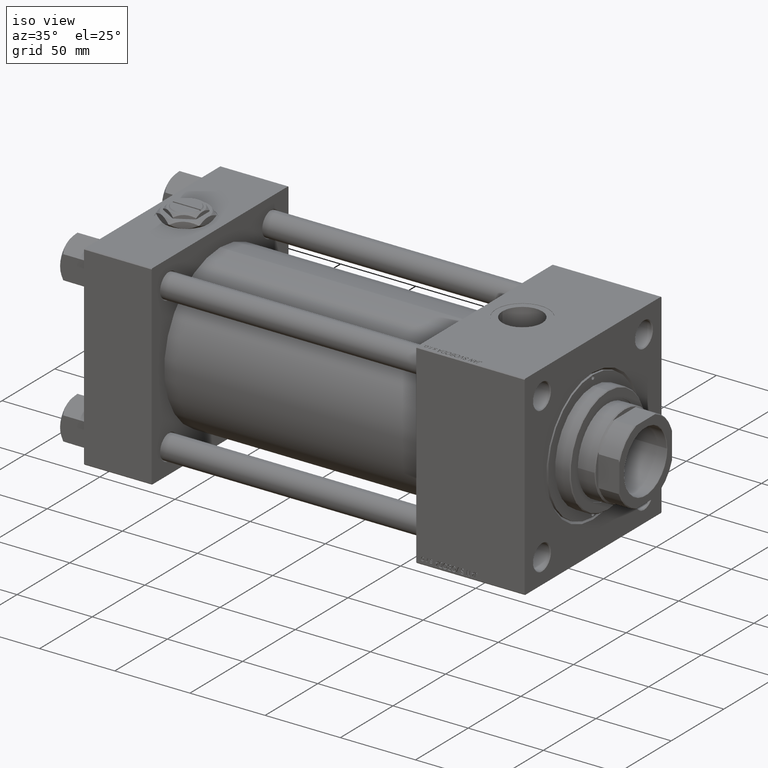
[diagram: clean part render]
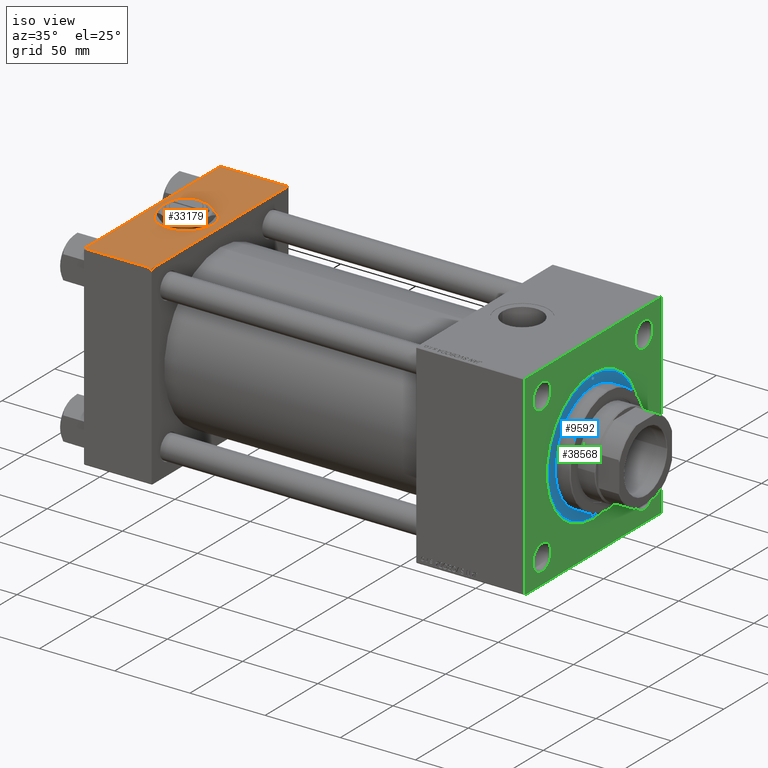
[diagram: same view with three faces highlighted in distinct colors, each labeled with its STEP entity id]
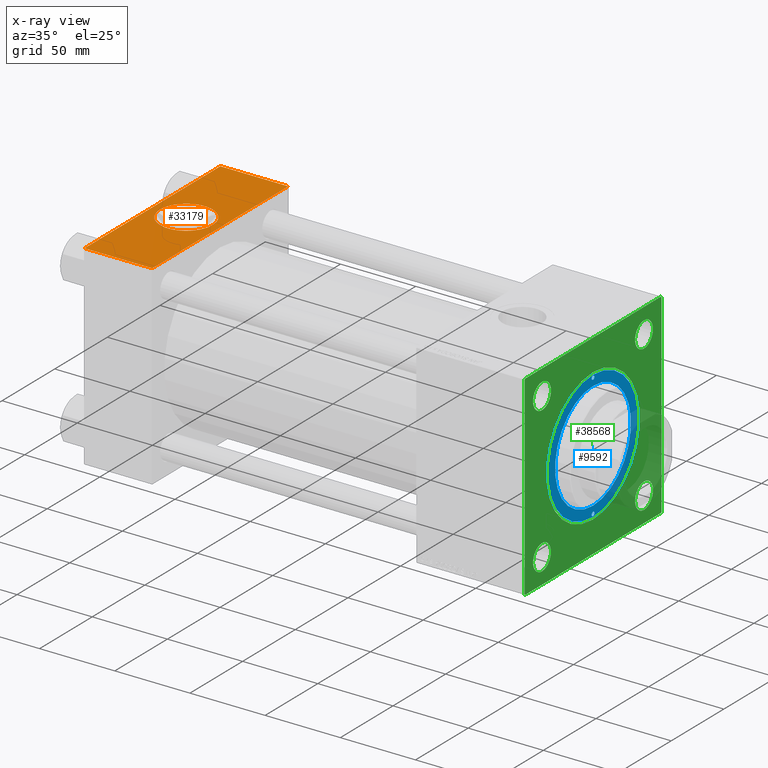
[diagram: x-ray of the same camera — body ghosted, the three highlighted faces saturated]
A machine part, iso view with three faces highlighted in distinct colors.
The next image is the same camera in x-ray (body ghosted, the three faces saturated) — at least one of them is partly hidden behind the body in this view.
Their STEP definitions:

[orange] entity #33179 — the highlighted planar face has unit normal (0, 0, -1).
#2088 = ORIENTED_EDGE ( 'NONE', *, *, #9743, .T. ) ;
#2925 = FACE_BOUND ( 'NONE', #11461, .T. ) ;
#3879 = CARTESIAN_POINT ( 'NONE',  ( 4.999999999999997335, -6.530485481376167224E-15, 65.00000000000000000 ) ) ;
#6638 = ORIENTED_EDGE ( 'NONE', *, *, #44362, .T. ) ;
#7483 = PLANE ( 'NONE',  #45218 ) ;
#7799 = ORIENTED_EDGE ( 'NONE', *, *, #14990, .T. ) ;
#9743 = EDGE_CURVE ( 'NONE', #51570, #29292, #17044, .T. ) ;
#10136 = VECTOR ( 'NONE', #17566, 1000.000000000000000 ) ;
#10949 = DIRECTION ( 'NONE',  ( 0.000000000000000000, 1.000000000000000000, 1.067522139062650548E-16 ) ) ;
#11117 = ORIENTED_EDGE ( 'NONE', *, *, #25686, .F. ) ;
#11461 = EDGE_LOOP ( 'NONE', ( #20866, #11117 ) ) ;
#11503 = EDGE_CURVE ( 'NONE', #34781, #50611, #31800, .T. ) ;
#11755 = CARTESIAN_POINT ( 'NONE',  ( 0.000000000000000000, -64.49999999999997158, 65.00000000000000000 ) ) ;
#14990 = EDGE_CURVE ( 'NONE', #29292, #39689, #41036, .T. ) ;
#16913 = EDGE_LOOP ( 'NONE', ( #7799, #6638, #52885, #2088 ) ) ;
#17044 = LINE ( 'NONE', #17306, #10136 ) ;
#17049 = VERTEX_POINT ( 'NONE', #19312 ) ;
#17306 = CARTESIAN_POINT ( 'NONE',  ( 0.000000000000000000, 64.49999999999997158, 65.00000000000001421 ) ) ;
#17566 = DIRECTION ( 'NONE',  ( -1.000000000000000000, 0.000000000000000000, 0.000000000000000000 ) ) ;
#17593 = CARTESIAN_POINT ( 'NONE',  ( 0.000000000000000000, 64.49999999999997158, 65.00000000000001421 ) ) ;
#17673 = EDGE_CURVE ( 'NONE', #51570, #17049, #45587, .T. ) ;
#19312 = CARTESIAN_POINT ( 'NONE',  ( 45.00000000000000000, -64.49999999999997158, 65.00000000000000000 ) ) ;
#19770 = LINE ( 'NONE', #51912, #30606 ) ;
#20866 = ORIENTED_EDGE ( 'NONE', *, *, #11503, .F. ) ;
#21020 = CARTESIAN_POINT ( 'NONE',  ( 22.50000000000000000, -8.673617379884035472E-15, 65.00000000000000000 ) ) ;
#21478 = DIRECTION ( 'NONE',  ( 0.000000000000000000, -1.000000000000000000, -1.067522139062650425E-16 ) ) ;
#22737 = CIRCLE ( 'NONE', #31273, 17.50000000000000000 ) ;
#24529 = DIRECTION ( 'NONE',  ( 0.000000000000000000, 0.000000000000000000, 1.000000000000000000 ) ) ;
#25686 = EDGE_CURVE ( 'NONE', #50611, #34781, #22737, .T. ) ;
#25844 = CARTESIAN_POINT ( 'NONE',  ( 40.00000000000000000, -8.673617379884035472E-15, 65.00000000000000000 ) ) ;
#29292 = VERTEX_POINT ( 'NONE', #17593 ) ;
#30606 = VECTOR ( 'NONE', #51650, 1000.000000000000000 ) ;
#31047 = CARTESIAN_POINT ( 'NONE',  ( 45.00000000000000000, 65.00000000000000000, 65.00000000000001421 ) ) ;
#31273 = AXIS2_PLACEMENT_3D ( 'NONE', #21020, #40854, #37110 ) ;
#31800 = CIRCLE ( 'NONE', #48046, 17.50000000000000000 ) ;
#32319 = DIRECTION ( 'NONE',  ( 1.000000000000000000, 0.000000000000000000, 0.000000000000000000 ) ) ;
#32755 = VECTOR ( 'NONE', #21478, 1000.000000000000000 ) ;
#33179 = ADVANCED_FACE ( 'NONE', ( #2925, #51947 ), #7483, .F. ) ;
#34781 = VERTEX_POINT ( 'NONE', #25844 ) ;
#36341 = CARTESIAN_POINT ( 'NONE',  ( 22.50000000000000000, -8.673617379884035472E-15, 65.00000000000000000 ) ) ;
#37110 = DIRECTION ( 'NONE',  ( 1.000000000000000000, 0.000000000000000000, 0.000000000000000000 ) ) ;
#37931 = VECTOR ( 'NONE', #46380, 1000.000000000000000 ) ;
#39572 = CARTESIAN_POINT ( 'NONE',  ( 45.00000000000000000, 64.49999999999997158, 65.00000000000001421 ) ) ;
#39689 = VERTEX_POINT ( 'NONE', #11755 ) ;
#40854 = DIRECTION ( 'NONE',  ( 0.000000000000000000, 0.000000000000000000, 1.000000000000000000 ) ) ;
#41036 = LINE ( 'NONE', #41818, #32755 ) ;
#41818 = CARTESIAN_POINT ( 'NONE',  ( 0.000000000000000000, 65.00000000000000000, 65.00000000000001421 ) ) ;
#43621 = DIRECTION ( 'NONE',  ( 0.000000000000000000, 1.067522139062650548E-16, -1.000000000000000000 ) ) ;
#44362 = EDGE_CURVE ( 'NONE', #39689, #17049, #19770, .T. ) ;
#45218 = AXIS2_PLACEMENT_3D ( 'NONE', #31047, #43621, #10949 ) ;
#45587 = LINE ( 'NONE', #50404, #37931 ) ;
#46380 = DIRECTION ( 'NONE',  ( 0.000000000000000000, -1.000000000000000000, -1.067522139062650425E-16 ) ) ;
#48046 = AXIS2_PLACEMENT_3D ( 'NONE', #36341, #24529, #32319 ) ;
#50404 = CARTESIAN_POINT ( 'NONE',  ( 45.00000000000000000, 65.00000000000000000, 65.00000000000001421 ) ) ;
#50611 = VERTEX_POINT ( 'NONE', #3879 ) ;
#51570 = VERTEX_POINT ( 'NONE', #39572 ) ;
#51650 = DIRECTION ( 'NONE',  ( 1.000000000000000000, 0.000000000000000000, 0.000000000000000000 ) ) ;
#51912 = CARTESIAN_POINT ( 'NONE',  ( 45.00000000000000000, -64.49999999999997158, 65.00000000000000000 ) ) ;
#51947 = FACE_OUTER_BOUND ( 'NONE', #16913, .T. ) ;
#52885 = ORIENTED_EDGE ( 'NONE', *, *, #17673, .F. ) ;

[blue] entity #9592 — the highlighted planar face has unit normal (1, 0, 0).
#4 = AXIS2_PLACEMENT_3D ( 'NONE', #7756, #32388, #49503 ) ;
#322 = VERTEX_POINT ( 'NONE', #25390 ) ;
#479 = DIRECTION ( 'NONE',  ( 0.000000000000000000, 0.000000000000000000, 1.000000000000000000 ) ) ;
#987 = EDGE_LOOP ( 'NONE', ( #48720, #21626 ) ) ;
#1166 = EDGE_CURVE ( 'NONE', #51088, #32192, #23688, .T. ) ;
#1721 = CIRCLE ( 'NONE', #29935, 1.249999999999994227 ) ;
#2031 = ORIENTED_EDGE ( 'NONE', *, *, #1166, .F. ) ;
#2086 = EDGE_LOOP ( 'NONE', ( #2031, #21890 ) ) ;
#3426 = DIRECTION ( 'NONE',  ( 0.000000000000000000, 0.000000000000000000, 1.000000000000000000 ) ) ;
#3947 = DIRECTION ( 'NONE',  ( 1.000000000000000000, 0.000000000000000000, -0.000000000000000000 ) ) ;
#4407 = EDGE_LOOP ( 'NONE', ( #45508, #33569 ) ) ;
#6277 = DIRECTION ( 'NONE',  ( 0.000000000000000000, 0.000000000000000000, 1.000000000000000000 ) ) ;
#7397 = CIRCLE ( 'NONE', #35611, 36.00000000000000000 ) ;
#7448 = AXIS2_PLACEMENT_3D ( 'NONE', #40433, #48474, #48211 ) ;
#7734 = EDGE_CURVE ( 'NONE', #24610, #35501, #1721, .T. ) ;
#7756 = CARTESIAN_POINT ( 'NONE',  ( 0.000000000000000000, 0.000000000000000000, 28.69999999999999929 ) ) ;
#7965 = CARTESIAN_POINT ( 'NONE',  ( 0.000000000000000000, 0.000000000000000000, 28.69999999999999929 ) ) ;
#9592 = ADVANCED_FACE ( 'NONE', ( #10109, #22440, #18416, #38767 ), #15998, .T. ) ;
#9633 = AXIS2_PLACEMENT_3D ( 'NONE', #46779, #50808, #51349 ) ;
#10109 = FACE_BOUND ( 'NONE', #2086, .T. ) ;
#10111 = VERTEX_POINT ( 'NONE', #26522 ) ;
#11295 = EDGE_CURVE ( 'NONE', #322, #48941, #21611, .T. ) ;
#11708 = CIRCLE ( 'NONE', #21931, 42.75000000000000000 ) ;
#12804 = CIRCLE ( 'NONE', #4, 42.75000000000000000 ) ;
#13932 = CARTESIAN_POINT ( 'NONE',  ( 39.75000000000000000, 1.530808498934193050E-16, 28.69999999999999929 ) ) ;
#15825 = DIRECTION ( 'NONE',  ( 0.000000000000000000, 0.000000000000000000, 1.000000000000000000 ) ) ;
#15998 = PLANE ( 'NONE',  #31537 ) ;
#16086 = CARTESIAN_POINT ( 'NONE',  ( -42.25000000000000000, 1.530808498934193050E-16, 28.69999999999999929 ) ) ;
#17365 = ORIENTED_EDGE ( 'NONE', *, *, #44515, .F. ) ;
#18333 = CARTESIAN_POINT ( 'NONE',  ( 41.00000000000000000, 0.000000000000000000, 28.69999999999999929 ) ) ;
#18416 = FACE_BOUND ( 'NONE', #987, .T. ) ;
#20566 = CARTESIAN_POINT ( 'NONE',  ( 0.000000000000000000, 0.000000000000000000, 28.69999999999999929 ) ) ;
#20674 = CARTESIAN_POINT ( 'NONE',  ( -39.75000000000000711, 0.000000000000000000, 28.69999999999999929 ) ) ;
#21606 = DIRECTION ( 'NONE',  ( 0.000000000000000000, 0.000000000000000000, 1.000000000000000000 ) ) ;
#21611 = CIRCLE ( 'NONE', #9633, 36.00000000000000000 ) ;
#21626 = ORIENTED_EDGE ( 'NONE', *, *, #22765, .F. ) ;
#21890 = ORIENTED_EDGE ( 'NONE', *, *, #38546, .F. ) ;
#21931 = AXIS2_PLACEMENT_3D ( 'NONE', #20566, #21606, #33934 ) ;
#21967 = CIRCLE ( 'NONE', #35681, 1.249999999999994227 ) ;
#22440 = FACE_BOUND ( 'NONE', #29138, .T. ) ;
#22765 = EDGE_CURVE ( 'NONE', #48941, #322, #7397, .T. ) ;
#23688 = CIRCLE ( 'NONE', #7448, 1.249999999999994227 ) ;
#23813 = CARTESIAN_POINT ( 'NONE',  ( -41.00000000000000000, 0.000000000000000000, 28.69999999999999929 ) ) ;
#24431 = EDGE_CURVE ( 'NONE', #26753, #10111, #11708, .T. ) ;
#24610 = VERTEX_POINT ( 'NONE', #28282 ) ;
#25390 = CARTESIAN_POINT ( 'NONE',  ( -36.00000000000000000, 0.000000000000000000, 28.69999999999999929 ) ) ;
#25646 = DIRECTION ( 'NONE',  ( 1.000000000000000000, 0.000000000000000000, 0.000000000000000000 ) ) ;
#26522 = CARTESIAN_POINT ( 'NONE',  ( -42.75000000000000000, 0.000000000000000000, 28.69999999999999929 ) ) ;
#26753 = VERTEX_POINT ( 'NONE', #36604 ) ;
#27408 = CARTESIAN_POINT ( 'NONE',  ( 36.00000000000000000, 4.408728476930470856E-15, 28.69999999999999929 ) ) ;
#28282 = CARTESIAN_POINT ( 'NONE',  ( 42.24999999999999289, 0.000000000000000000, 28.69999999999999929 ) ) ;
#28657 = CARTESIAN_POINT ( 'NONE',  ( 41.00000000000000000, 0.000000000000000000, 28.69999999999999929 ) ) ;
#29138 = EDGE_LOOP ( 'NONE', ( #33534, #17365 ) ) ;
#29935 = AXIS2_PLACEMENT_3D ( 'NONE', #28657, #15825, #40969 ) ;
#31537 = AXIS2_PLACEMENT_3D ( 'NONE', #7965, #3426, #3947 ) ;
#31850 = DIRECTION ( 'NONE',  ( 1.000000000000000000, 0.000000000000000000, 0.000000000000000000 ) ) ;
#32192 = VERTEX_POINT ( 'NONE', #16086 ) ;
#32388 = DIRECTION ( 'NONE',  ( 0.000000000000000000, 0.000000000000000000, 1.000000000000000000 ) ) ;
#33534 = ORIENTED_EDGE ( 'NONE', *, *, #7734, .F. ) ;
#33569 = ORIENTED_EDGE ( 'NONE', *, *, #24431, .T. ) ;
#33934 = DIRECTION ( 'NONE',  ( 1.000000000000000000, 0.000000000000000000, 0.000000000000000000 ) ) ;
#35501 = VERTEX_POINT ( 'NONE', #13932 ) ;
#35611 = AXIS2_PLACEMENT_3D ( 'NONE', #41192, #479, #25646 ) ;
#35681 = AXIS2_PLACEMENT_3D ( 'NONE', #23813, #36393, #31850 ) ;
#35805 = EDGE_CURVE ( 'NONE', #10111, #26753, #12804, .T. ) ;
#36393 = DIRECTION ( 'NONE',  ( 0.000000000000000000, 0.000000000000000000, 1.000000000000000000 ) ) ;
#36604 = CARTESIAN_POINT ( 'NONE',  ( 42.75000000000000000, 5.235365066354935472E-15, 28.69999999999999929 ) ) ;
#38546 = EDGE_CURVE ( 'NONE', #32192, #51088, #21967, .T. ) ;
#38767 = FACE_OUTER_BOUND ( 'NONE', #4407, .T. ) ;
#39168 = CIRCLE ( 'NONE', #47750, 1.249999999999994227 ) ;
#40433 = CARTESIAN_POINT ( 'NONE',  ( -41.00000000000000000, 0.000000000000000000, 28.69999999999999929 ) ) ;
#40969 = DIRECTION ( 'NONE',  ( 1.000000000000000000, 0.000000000000000000, 0.000000000000000000 ) ) ;
#41192 = CARTESIAN_POINT ( 'NONE',  ( 0.000000000000000000, 0.000000000000000000, 28.69999999999999929 ) ) ;
#44515 = EDGE_CURVE ( 'NONE', #35501, #24610, #39168, .T. ) ;
#45508 = ORIENTED_EDGE ( 'NONE', *, *, #35805, .T. ) ;
#46779 = CARTESIAN_POINT ( 'NONE',  ( 0.000000000000000000, 0.000000000000000000, 28.69999999999999929 ) ) ;
#47750 = AXIS2_PLACEMENT_3D ( 'NONE', #18333, #6277, #51013 ) ;
#48211 = DIRECTION ( 'NONE',  ( 1.000000000000000000, 0.000000000000000000, 0.000000000000000000 ) ) ;
#48474 = DIRECTION ( 'NONE',  ( 0.000000000000000000, 0.000000000000000000, 1.000000000000000000 ) ) ;
#48720 = ORIENTED_EDGE ( 'NONE', *, *, #11295, .F. ) ;
#48941 = VERTEX_POINT ( 'NONE', #27408 ) ;
#49503 = DIRECTION ( 'NONE',  ( 1.000000000000000000, 0.000000000000000000, 0.000000000000000000 ) ) ;
#50808 = DIRECTION ( 'NONE',  ( 0.000000000000000000, 0.000000000000000000, 1.000000000000000000 ) ) ;
#51013 = DIRECTION ( 'NONE',  ( 1.000000000000000000, 0.000000000000000000, 0.000000000000000000 ) ) ;
#51088 = VERTEX_POINT ( 'NONE', #20674 ) ;
#51349 = DIRECTION ( 'NONE',  ( 1.000000000000000000, 0.000000000000000000, 0.000000000000000000 ) ) ;

[green] entity #38568 — the highlighted planar face has unit normal (-1, 0, 0).
#536 = VERTEX_POINT ( 'NONE', #49964 ) ;
#1110 = VECTOR ( 'NONE', #30693, 1000.000000000000114 ) ;
#1195 = DIRECTION ( 'NONE',  ( -1.000000000000000000, 0.000000000000000000, -0.000000000000000000 ) ) ;
#1264 = EDGE_CURVE ( 'NONE', #17976, #2423, #41625, .T. ) ;
#1456 = DIRECTION ( 'NONE',  ( 0.000000000000000000, -0.7071067811865474617, 0.7071067811865474617 ) ) ;
#2423 = VERTEX_POINT ( 'NONE', #48724 ) ;
#3457 = FACE_OUTER_BOUND ( 'NONE', #32601, .T. ) ;
#3838 = DIRECTION ( 'NONE',  ( -1.000000000000000000, 0.000000000000000000, -0.000000000000000000 ) ) ;
#4191 = VECTOR ( 'NONE', #51800, 1000.000000000000000 ) ;
#4771 = EDGE_CURVE ( 'NONE', #14918, #29832, #35467, .T. ) ;
#4901 = CARTESIAN_POINT ( 'NONE',  ( 293.0000000000000000, -64.99999999999998579, 65.00000000000000000 ) ) ;
#5500 = ORIENTED_EDGE ( 'NONE', *, *, #11564, .T. ) ;
#5985 = VERTEX_POINT ( 'NONE', #23038 ) ;
#6203 = AXIS2_PLACEMENT_3D ( 'NONE', #11264, #44189, #43112 ) ;
#6330 = EDGE_CURVE ( 'NONE', #9230, #29832, #7046, .T. ) ;
#7009 = VERTEX_POINT ( 'NONE', #42789 ) ;
#7046 = LINE ( 'NONE', #19362, #11917 ) ;
#7195 = EDGE_LOOP ( 'NONE', ( #17547, #30811 ) ) ;
#7339 = EDGE_CURVE ( 'NONE', #30335, #7009, #47030, .T. ) ;
#7737 = FACE_BOUND ( 'NONE', #48816, .T. ) ;
#7858 = DIRECTION ( 'NONE',  ( -1.000000000000000000, 0.000000000000000000, -0.000000000000000000 ) ) ;
#7993 = DIRECTION ( 'NONE',  ( -1.000000000000000000, 0.000000000000000000, -0.000000000000000000 ) ) ;
#8653 = DIRECTION ( 'NONE',  ( 0.000000000000000000, 0.000000000000000000, -1.000000000000000000 ) ) ;
#9230 = VERTEX_POINT ( 'NONE', #36428 ) ;
#10153 = EDGE_CURVE ( 'NONE', #48155, #34626, #17327, .T. ) ;
#10808 = EDGE_CURVE ( 'NONE', #34626, #48155, #22456, .T. ) ;
#11052 = VECTOR ( 'NONE', #1456, 1000.000000000000114 ) ;
#11122 = VECTOR ( 'NONE', #8653, 1000.000000000000000 ) ;
#11194 = CARTESIAN_POINT ( 'NONE',  ( 293.0000000000000000, 48.45000000000000995, 56.95000000000010232 ) ) ;
#11264 = CARTESIAN_POINT ( 'NONE',  ( 293.0000000000000000, 0.000000000000000000, 0.000000000000000000 ) ) ;
#11564 = EDGE_CURVE ( 'NONE', #40612, #32953, #46424, .T. ) ;
#11830 = DIRECTION ( 'NONE',  ( 0.000000000000000000, 0.000000000000000000, 1.000000000000000000 ) ) ;
#11917 = VECTOR ( 'NONE', #35712, 1000.000000000000114 ) ;
#12016 = FACE_BOUND ( 'NONE', #43396, .T. ) ;
#12330 = CARTESIAN_POINT ( 'NONE',  ( 293.0000000000000000, -64.99999999999998579, 64.49999999999994316 ) ) ;
#12648 = DIRECTION ( 'NONE',  ( -1.000000000000000000, 0.000000000000000000, -0.000000000000000000 ) ) ;
#12869 = CARTESIAN_POINT ( 'NONE',  ( 293.0000000000000000, 65.00000000000002842, -64.99999999999998579 ) ) ;
#14105 = EDGE_CURVE ( 'NONE', #7009, #30335, #40393, .T. ) ;
#14626 = VECTOR ( 'NONE', #24190, 1000.000000000000000 ) ;
#14873 = ORIENTED_EDGE ( 'NONE', *, *, #49692, .T. ) ;
#14918 = VERTEX_POINT ( 'NONE', #33543 ) ;
#15504 = EDGE_CURVE ( 'NONE', #5985, #46526, #50335, .T. ) ;
#15901 = CARTESIAN_POINT ( 'NONE',  ( 293.0000000000000000, 65.00000000000002842, -64.49999999999992895 ) ) ;
#16258 = EDGE_CURVE ( 'NONE', #52898, #27831, #52133, .T. ) ;
#16311 = DIRECTION ( 'NONE',  ( -1.000000000000000000, 0.000000000000000000, -0.000000000000000000 ) ) ;
#16693 = CARTESIAN_POINT ( 'NONE',  ( 293.0000000000000000, -48.44999999999998153, 39.94999999999995310 ) ) ;
#16745 = DIRECTION ( 'NONE',  ( 0.000000000000000000, 0.000000000000000000, 1.000000000000000000 ) ) ;
#17136 = CARTESIAN_POINT ( 'NONE',  ( 293.0000000000000000, -48.44999999999998153, 56.95000000000002416 ) ) ;
#17327 = CIRCLE ( 'NONE', #6203, 44.25000000000004263 ) ;
#17547 = ORIENTED_EDGE ( 'NONE', *, *, #10808, .T. ) ;
#17976 = VERTEX_POINT ( 'NONE', #21414 ) ;
#19362 = CARTESIAN_POINT ( 'NONE',  ( 293.0000000000000000, 65.00000000000002842, -64.49999999999992895 ) ) ;
#19905 = DIRECTION ( 'NONE',  ( 0.000000000000000000, 0.000000000000000000, 1.000000000000000000 ) ) ;
#19926 = CARTESIAN_POINT ( 'NONE',  ( 293.0000000000000000, 65.00000000000002842, 65.00000000000001421 ) ) ;
#19939 = VECTOR ( 'NONE', #38529, 1000.000000000000000 ) ;
#20157 = ORIENTED_EDGE ( 'NONE', *, *, #22675, .T. ) ;
#20196 = CIRCLE ( 'NONE', #33010, 8.500000000000035527 ) ;
#21414 = CARTESIAN_POINT ( 'NONE',  ( 293.0000000000000000, 48.45000000000000995, -39.94999999999998153 ) ) ;
#22426 = EDGE_CURVE ( 'NONE', #22913, #38323, #20196, .T. ) ;
#22456 = CIRCLE ( 'NONE', #34430, 44.25000000000004263 ) ;
#22675 = EDGE_CURVE ( 'NONE', #32953, #40612, #50118, .T. ) ;
#22776 = EDGE_LOOP ( 'NONE', ( #31095, #52182 ) ) ;
#22913 = VERTEX_POINT ( 'NONE', #16693 ) ;
#22964 = AXIS2_PLACEMENT_3D ( 'NONE', #25059, #41382, #33887 ) ;
#23038 = CARTESIAN_POINT ( 'NONE',  ( 293.0000000000000000, -64.99999999999998579, -64.49999999999997158 ) ) ;
#23448 = ORIENTED_EDGE ( 'NONE', *, *, #7339, .T. ) ;
#23538 = CARTESIAN_POINT ( 'NONE',  ( 293.0000000000000000, 0.000000000000000000, 0.000000000000000000 ) ) ;
#23657 = CARTESIAN_POINT ( 'NONE',  ( 293.0000000000000000, 48.45000000000000995, 48.45000000000001705 ) ) ;
#24177 = EDGE_CURVE ( 'NONE', #9230, #46526, #36988, .T. ) ;
#24190 = DIRECTION ( 'NONE',  ( 0.000000000000000000, -1.000000000000000000, -1.067522139062650425E-16 ) ) ;
#24801 = ORIENTED_EDGE ( 'NONE', *, *, #16258, .T. ) ;
#25059 = CARTESIAN_POINT ( 'NONE',  ( 293.0000000000000000, 48.45000000000000995, -48.45000000000001705 ) ) ;
#25658 = DIRECTION ( 'NONE',  ( -1.000000000000000000, 0.000000000000000000, -0.000000000000000000 ) ) ;
#25773 = ORIENTED_EDGE ( 'NONE', *, *, #33775, .T. ) ;
#26669 = CARTESIAN_POINT ( 'NONE',  ( 293.0000000000000000, -64.99999999999998579, 64.49999999999994316 ) ) ;
#27359 = DIRECTION ( 'NONE',  ( -1.000000000000000000, 0.000000000000000000, -0.000000000000000000 ) ) ;
#27831 = VERTEX_POINT ( 'NONE', #12330 ) ;
#27967 = AXIS2_PLACEMENT_3D ( 'NONE', #49515, #25658, #41990 ) ;
#28348 = FACE_BOUND ( 'NONE', #32161, .T. ) ;
#28717 = CARTESIAN_POINT ( 'NONE',  ( 293.0000000000000000, -48.44999999999998153, 48.44999999999998863 ) ) ;
#29457 = DIRECTION ( 'NONE',  ( 0.000000000000000000, -1.000000000000000000, -2.135044278125300850E-16 ) ) ;
#29460 = CARTESIAN_POINT ( 'NONE',  ( 293.0000000000000000, -48.45000000000001705, -39.94999999999998153 ) ) ;
#29529 = LINE ( 'NONE', #4901, #11122 ) ;
#29832 = VERTEX_POINT ( 'NONE', #15901 ) ;
#30050 = AXIS2_PLACEMENT_3D ( 'NONE', #37890, #1195, #16745 ) ;
#30335 = VERTEX_POINT ( 'NONE', #11194 ) ;
#30693 = DIRECTION ( 'NONE',  ( -0.000000000000000000, -0.7071067811865573427, -0.7071067811865376918 ) ) ;
#30811 = ORIENTED_EDGE ( 'NONE', *, *, #10153, .T. ) ;
#31095 = ORIENTED_EDGE ( 'NONE', *, *, #22426, .T. ) ;
#31409 = ORIENTED_EDGE ( 'NONE', *, *, #14105, .T. ) ;
#31664 = AXIS2_PLACEMENT_3D ( 'NONE', #28717, #12648, #37030 ) ;
#32108 = FACE_BOUND ( 'NONE', #7195, .T. ) ;
#32161 = EDGE_LOOP ( 'NONE', ( #35241, #35281 ) ) ;
#32190 = DIRECTION ( 'NONE',  ( -1.000000000000000000, 0.000000000000000000, -0.000000000000000000 ) ) ;
#32484 = CARTESIAN_POINT ( 'NONE',  ( 293.0000000000000000, 65.00000000000002842, 65.00000000000001421 ) ) ;
#32597 = CARTESIAN_POINT ( 'NONE',  ( 293.0000000000000000, 0.000000000000000000, -44.25000000000004263 ) ) ;
#32601 = EDGE_LOOP ( 'NONE', ( #14873, #35110, #32708, #46730, #42652, #25773, #48688, #24801 ) ) ;
#32708 = ORIENTED_EDGE ( 'NONE', *, *, #24177, .F. ) ;
#32713 = AXIS2_PLACEMENT_3D ( 'NONE', #23657, #7858, #47489 ) ;
#32953 = VERTEX_POINT ( 'NONE', #29460 ) ;
#33010 = AXIS2_PLACEMENT_3D ( 'NONE', #48529, #32190, #11830 ) ;
#33543 = CARTESIAN_POINT ( 'NONE',  ( 293.0000000000000000, 65.00000000000002842, 64.50000000000004263 ) ) ;
#33775 = EDGE_CURVE ( 'NONE', #14918, #536, #46455, .T. ) ;
#33887 = DIRECTION ( 'NONE',  ( 0.000000000000000000, 0.000000000000000000, 1.000000000000000000 ) ) ;
#34430 = AXIS2_PLACEMENT_3D ( 'NONE', #47717, #27359, #35953 ) ;
#34626 = VERTEX_POINT ( 'NONE', #32597 ) ;
#35110 = ORIENTED_EDGE ( 'NONE', *, *, #15504, .T. ) ;
#35241 = ORIENTED_EDGE ( 'NONE', *, *, #45854, .T. ) ;
#35281 = ORIENTED_EDGE ( 'NONE', *, *, #1264, .T. ) ;
#35467 = LINE ( 'NONE', #19926, #4191 ) ;
#35712 = DIRECTION ( 'NONE',  ( -0.000000000000000000, 0.7071067811865474617, 0.7071067811865474617 ) ) ;
#35953 = DIRECTION ( 'NONE',  ( 0.000000000000000000, 0.000000000000000000, 1.000000000000000000 ) ) ;
#36025 = CARTESIAN_POINT ( 'NONE',  ( 293.0000000000000000, -48.45000000000001705, -56.95000000000005258 ) ) ;
#36245 = CARTESIAN_POINT ( 'NONE',  ( 293.0000000000000000, 5.419062086227042928E-15, 44.25000000000004263 ) ) ;
#36412 = DIRECTION ( 'NONE',  ( 0.000000000000000000, 0.000000000000000000, 1.000000000000000000 ) ) ;
#36428 = CARTESIAN_POINT ( 'NONE',  ( 293.0000000000000000, 64.49999999999997158, -64.99999999999998579 ) ) ;
#36988 = LINE ( 'NONE', #12869, #52787 ) ;
#37030 = DIRECTION ( 'NONE',  ( 0.000000000000000000, 0.000000000000000000, 1.000000000000000000 ) ) ;
#37890 = CARTESIAN_POINT ( 'NONE',  ( 293.0000000000000000, -48.45000000000001705, -48.45000000000001705 ) ) ;
#38146 = CARTESIAN_POINT ( 'NONE',  ( 293.0000000000000000, 64.50000000000005684, 65.00000000000001421 ) ) ;
#38323 = VERTEX_POINT ( 'NONE', #17136 ) ;
#38529 = DIRECTION ( 'NONE',  ( 0.000000000000000000, 0.7071067811865672237, -0.7071067811865279218 ) ) ;
#38568 = ADVANCED_FACE ( 'NONE', ( #7737, #48711, #12016, #28348, #32108, #3457 ), #44674, .F. ) ;
#39304 = AXIS2_PLACEMENT_3D ( 'NONE', #48565, #3838, #19905 ) ;
#40183 = CIRCLE ( 'NONE', #31664, 8.500000000000035527 ) ;
#40393 = CIRCLE ( 'NONE', #32713, 8.500000000000090594 ) ;
#40612 = VERTEX_POINT ( 'NONE', #36025 ) ;
#40758 = AXIS2_PLACEMENT_3D ( 'NONE', #44438, #16311, #36412 ) ;
#41382 = DIRECTION ( 'NONE',  ( -1.000000000000000000, 0.000000000000000000, -0.000000000000000000 ) ) ;
#41625 = CIRCLE ( 'NONE', #27967, 8.500000000000035527 ) ;
#41752 = CIRCLE ( 'NONE', #22964, 8.500000000000035527 ) ;
#41990 = DIRECTION ( 'NONE',  ( 0.000000000000000000, 0.000000000000000000, 1.000000000000000000 ) ) ;
#42652 = ORIENTED_EDGE ( 'NONE', *, *, #4771, .F. ) ;
#42789 = CARTESIAN_POINT ( 'NONE',  ( 293.0000000000000000, 48.45000000000000995, 39.94999999999992468 ) ) ;
#43112 = DIRECTION ( 'NONE',  ( 0.000000000000000000, 0.000000000000000000, 1.000000000000000000 ) ) ;
#43396 = EDGE_LOOP ( 'NONE', ( #5500, #20157 ) ) ;
#43614 = CARTESIAN_POINT ( 'NONE',  ( 293.0000000000000000, -64.49999999999991473, 65.00000000000000000 ) ) ;
#43995 = LINE ( 'NONE', #32484, #14626 ) ;
#44189 = DIRECTION ( 'NONE',  ( -1.000000000000000000, 0.000000000000000000, -0.000000000000000000 ) ) ;
#44418 = DIRECTION ( 'NONE',  ( -0.000000000000000000, 0.000000000000000000, 1.000000000000000000 ) ) ;
#44438 = CARTESIAN_POINT ( 'NONE',  ( 293.0000000000000000, -48.45000000000001705, -48.45000000000001705 ) ) ;
#44674 = PLANE ( 'NONE',  #46744 ) ;
#45854 = EDGE_CURVE ( 'NONE', #2423, #17976, #41752, .T. ) ;
#46424 = CIRCLE ( 'NONE', #30050, 8.500000000000035527 ) ;
#46455 = LINE ( 'NONE', #38146, #11052 ) ;
#46526 = VERTEX_POINT ( 'NONE', #52689 ) ;
#46730 = ORIENTED_EDGE ( 'NONE', *, *, #6330, .T. ) ;
#46744 = AXIS2_PLACEMENT_3D ( 'NONE', #23538, #7993, #44418 ) ;
#47030 = CIRCLE ( 'NONE', #39304, 8.500000000000090594 ) ;
#47104 = CARTESIAN_POINT ( 'NONE',  ( 293.0000000000000000, -64.49999999999991473, -65.00000000000001421 ) ) ;
#47489 = DIRECTION ( 'NONE',  ( 0.000000000000000000, 0.000000000000000000, 1.000000000000000000 ) ) ;
#47717 = CARTESIAN_POINT ( 'NONE',  ( 293.0000000000000000, 0.000000000000000000, 0.000000000000000000 ) ) ;
#48155 = VERTEX_POINT ( 'NONE', #36245 ) ;
#48529 = CARTESIAN_POINT ( 'NONE',  ( 293.0000000000000000, -48.44999999999998153, 48.44999999999998863 ) ) ;
#48565 = CARTESIAN_POINT ( 'NONE',  ( 293.0000000000000000, 48.45000000000000995, 48.45000000000001705 ) ) ;
#48688 = ORIENTED_EDGE ( 'NONE', *, *, #51955, .T. ) ;
#48711 = FACE_BOUND ( 'NONE', #22776, .T. ) ;
#48724 = CARTESIAN_POINT ( 'NONE',  ( 293.0000000000000000, 48.45000000000000995, -56.95000000000005258 ) ) ;
#48816 = EDGE_LOOP ( 'NONE', ( #31409, #23448 ) ) ;
#48983 = EDGE_CURVE ( 'NONE', #38323, #22913, #40183, .T. ) ;
#49515 = CARTESIAN_POINT ( 'NONE',  ( 293.0000000000000000, 48.45000000000000995, -48.45000000000001705 ) ) ;
#49692 = EDGE_CURVE ( 'NONE', #27831, #5985, #29529, .T. ) ;
#49964 = CARTESIAN_POINT ( 'NONE',  ( 293.0000000000000000, 64.50000000000005684, 65.00000000000001421 ) ) ;
#50118 = CIRCLE ( 'NONE', #40758, 8.500000000000035527 ) ;
#50335 = LINE ( 'NONE', #47104, #19939 ) ;
#51800 = DIRECTION ( 'NONE',  ( 0.000000000000000000, 0.000000000000000000, -1.000000000000000000 ) ) ;
#51955 = EDGE_CURVE ( 'NONE', #536, #52898, #43995, .T. ) ;
#52133 = LINE ( 'NONE', #26669, #1110 ) ;
#52182 = ORIENTED_EDGE ( 'NONE', *, *, #48983, .T. ) ;
#52689 = CARTESIAN_POINT ( 'NONE',  ( 293.0000000000000000, -64.49999999999991473, -65.00000000000001421 ) ) ;
#52787 = VECTOR ( 'NONE', #29457, 1000.000000000000000 ) ;
#52898 = VERTEX_POINT ( 'NONE', #43614 ) ;